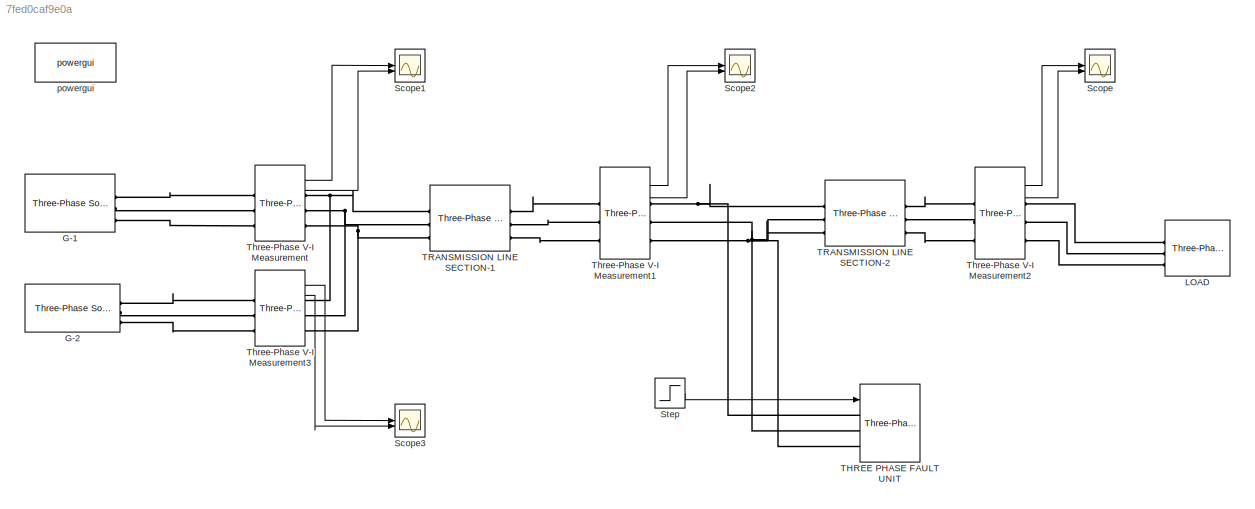
MODEL slx_7fed0caf9e0a
KIND model
CONFIG AbsTol = auto
CONFIG EnableMultiTasking = off
CONFIG FixedStep = auto
CONFIG MaxStep = auto
CONFIG MinStep = auto
CONFIG RelTol = 1e-3
CONFIG SampleTimeConstraint = Unconstrained
CONFIG SolverName = VariableStepAuto
CONFIG StartTime = 0.0
CONFIG StopTime = 0.08
BLOCK [Reference] G-1  REF=spsThreePhaseSourceLib/Three-Phase Source
  LibrarySourceBlock = sps_lib/Sources/Three-Phase Source
  SourceBlock = spsThreePhaseSourceLib/Three-Phase Source
  SourceType = Three-Phase Source
BLOCK [Reference] G-2  REF=spsThreePhaseSourceLib/Three-Phase Source
  LibrarySourceBlock = sps_lib/Sources/Three-Phase Source
  SourceBlock = spsThreePhaseSourceLib/Three-Phase Source
  SourceType = Three-Phase Source
BLOCK [Reference] LOAD  REF=spsThreePhaseParallelRLCLoadLib/Three-Phase
Parallel RLC Load
  AttributesFormatString = \n
  LibrarySourceBlock = sps_lib/Passives/Three-Phase\nParallel RLC Load
  NameLocation = right
  SourceBlock = spsThreePhaseParallelRLCLoadLib/Three-Phase\nParallel RLC Load
  SourceType = Three-Phase Parallel RLC Load
BLOCK [Scope] Scope
  Floating = off
  NumInputPorts = 2
  ScopeSpecificationString = Simulink.scopes.TimeScopeBlockCfg('CurrentConfiguration', extmgr.ConfigurationSet(extmgr.Configuration('Core','General UI',true),extmgr.Configuration('Core','Source UI',true),extmgr.Configuration('Sources','WiredSimulink',true),extmgr.Configuration('Visuals','Time Domain',true,'SerializedDisplays',{struct('MinYLimReal','-31869.31605','MaxYLimReal','31085.0816','YLabelReal','','MinYLimMag','   0.00...<+2485ch>
BLOCK [Scope] Scope1
  Floating = off
  NumInputPorts = 2
  ScopeSpecificationString = Simulink.scopes.TimeScopeBlockCfg('CurrentConfiguration', extmgr.ConfigurationSet(extmgr.Configuration('Core','General UI',true),extmgr.Configuration('Core','Source UI',true),extmgr.Configuration('Sources','WiredSimulink',true,'DataLoggingVariableName','ScopeData1'),extmgr.Configuration('Visuals','Time Domain',true,'SerializedDisplays',{struct('MinYLimReal','-24761.40195','MaxYLimReal','24761.4177...<+2544ch>
BLOCK [Scope] Scope2
  Floating = off
  NumInputPorts = 2
  ScopeSpecificationString = Simulink.scopes.TimeScopeBlockCfg('CurrentConfiguration', extmgr.ConfigurationSet(extmgr.Configuration('Core','General UI',true),extmgr.Configuration('Core','Source UI',true),extmgr.Configuration('Sources','WiredSimulink',true,'DataLoggingVariableName','ScopeData2'),extmgr.Configuration('Visuals','Time Domain',true,'SerializedDisplays',{struct('MinYLimReal','-33297.92364','MaxYLimReal','32421.1999...<+2309ch>
BLOCK [Scope] Scope3
  Floating = off
  NumInputPorts = 2
  ScopeSpecificationString = Simulink.scopes.TimeScopeBlockCfg('CurrentConfiguration', extmgr.ConfigurationSet(extmgr.Configuration('Core','General UI',true),extmgr.Configuration('Core','Source UI',true),extmgr.Configuration('Sources','WiredSimulink',true,'DataLoggingVariableName','ScopeData3'),extmgr.Configuration('Visuals','Time Domain',true,'SerializedDisplays',{struct('MinYLimReal','-24761.40195','MaxYLimReal','24761.4177...<+2550ch>
BLOCK [Step] Step
  SampleTime = 0
  Time = 0.04
BLOCK [Reference] THREE PHASE FAULT UNIT  REF=spsThreePhaseFaultLib/Three-Phase Fault
  LibrarySourceBlock = sps_lib/Power Grid Elements/Three-Phase Fault
  SourceBlock = spsThreePhaseFaultLib/Three-Phase Fault
  SourceType = Three-Phase Fault
BLOCK [Reference] TRANSMISSION LINE SECTION-1  REF=spsThreePhasePISectionLineLib/Three-Phase
PI Section Line
  AttributesFormatString = \n
  LibrarySourceBlock = sps_lib/Power Grid Elements/Three-Phase\nPI Section Line
  SourceBlock = spsThreePhasePISectionLineLib/Three-Phase\nPI Section Line
  SourceType = Three-Phase PI Section Line
BLOCK [Reference] TRANSMISSION LINE SECTION-2  REF=spsThreePhasePISectionLineLib/Three-Phase
PI Section Line
  AttributesFormatString = \n
  LibrarySourceBlock = sps_lib/Power Grid Elements/Three-Phase\nPI Section Line
  SourceBlock = spsThreePhasePISectionLineLib/Three-Phase\nPI Section Line
  SourceType = Three-Phase PI Section Line
BLOCK [Reference] Three-Phase V-I Measurement  REF=spsThreePhaseVIMeasurementLib/Three-Phase
V-I Measurement
  LibrarySourceBlock = sps_lib/Sensors and Measurements/Three-Phase\nV-I Measurement
  SourceBlock = spsThreePhaseVIMeasurementLib/Three-Phase\nV-I Measurement
  SourceType = Three-Phase VI Measurement
BLOCK [Reference] Three-Phase V-I Measurement1  REF=spsThreePhaseVIMeasurementLib/Three-Phase
V-I Measurement
  LibrarySourceBlock = sps_lib/Sensors and Measurements/Three-Phase\nV-I Measurement
  SourceBlock = spsThreePhaseVIMeasurementLib/Three-Phase\nV-I Measurement
  SourceType = Three-Phase VI Measurement
BLOCK [Reference] Three-Phase V-I Measurement2  REF=spsThreePhaseVIMeasurementLib/Three-Phase
V-I Measurement
  LibrarySourceBlock = sps_lib/Sensors and Measurements/Three-Phase\nV-I Measurement
  SourceBlock = spsThreePhaseVIMeasurementLib/Three-Phase\nV-I Measurement
  SourceType = Three-Phase VI Measurement
BLOCK [Reference] Three-Phase V-I Measurement3  REF=spsThreePhaseVIMeasurementLib/Three-Phase
V-I Measurement
  LibrarySourceBlock = sps_lib/Sensors and Measurements/Three-Phase\nV-I Measurement
  SourceBlock = spsThreePhaseVIMeasurementLib/Three-Phase\nV-I Measurement
  SourceType = Three-Phase VI Measurement
BLOCK [Reference] powergui  REF=sps_lib/powergui
  LibrarySourceBlock = sps_lib/powergui
  Priority = 1
  SourceBlock = sps_lib/powergui
  SourceType = PSB option menu block
LINE Step:1 -> THREE PHASE FAULT UNIT:1
LINE Three-Phase V-I Measurement1:1 -> Scope2:1
LINE Three-Phase V-I Measurement1:2 -> Scope2:2
LINE Three-Phase V-I Measurement2:1 -> Scope:1
LINE Three-Phase V-I Measurement2:2 -> Scope:2
LINE Three-Phase V-I Measurement3:1 -> Scope3:1
LINE Three-Phase V-I Measurement3:2 -> Scope3:2
LINE Three-Phase V-I Measurement:1 -> Scope1:1
LINE Three-Phase V-I Measurement:2 -> Scope1:2
PLINE G-1:RConn1 -- Three-Phase V-I Measurement:LConn1
PLINE G-1:RConn2 -- Three-Phase V-I Measurement:LConn2
PLINE G-1:RConn3 -- Three-Phase V-I Measurement:LConn3
PLINE G-2:RConn1 -- Three-Phase V-I Measurement3:LConn1
PLINE G-2:RConn2 -- Three-Phase V-I Measurement3:LConn2
PLINE G-2:RConn3 -- Three-Phase V-I Measurement3:LConn3
PLINE LOAD:LConn1 -- Three-Phase V-I Measurement2:RConn1
PLINE LOAD:LConn2 -- Three-Phase V-I Measurement2:RConn2
PLINE LOAD:LConn3 -- Three-Phase V-I Measurement2:RConn3
PNET net1: THREE PHASE FAULT UNIT:LConn1 -- TRANSMISSION LINE SECTION-2:LConn1 -- Three-Phase V-I Measurement1:RConn1
PNET net2: THREE PHASE FAULT UNIT:LConn2 -- TRANSMISSION LINE SECTION-2:LConn2 -- Three-Phase V-I Measurement1:RConn2
PNET net3: THREE PHASE FAULT UNIT:LConn3 -- TRANSMISSION LINE SECTION-2:LConn3 -- Three-Phase V-I Measurement1:RConn3
PNET net4: TRANSMISSION LINE SECTION-1:LConn1 -- Three-Phase V-I Measurement3:RConn1 -- Three-Phase V-I Measurement:RConn1
PNET net5: TRANSMISSION LINE SECTION-1:LConn2 -- Three-Phase V-I Measurement3:RConn2 -- Three-Phase V-I Measurement:RConn2
PNET net6: TRANSMISSION LINE SECTION-1:LConn3 -- Three-Phase V-I Measurement3:RConn3 -- Three-Phase V-I Measurement:RConn3
PLINE TRANSMISSION LINE SECTION-1:RConn1 -- Three-Phase V-I Measurement1:LConn1
PLINE TRANSMISSION LINE SECTION-1:RConn2 -- Three-Phase V-I Measurement1:LConn2
PLINE TRANSMISSION LINE SECTION-1:RConn3 -- Three-Phase V-I Measurement1:LConn3
PLINE TRANSMISSION LINE SECTION-2:RConn1 -- Three-Phase V-I Measurement2:LConn1
PLINE TRANSMISSION LINE SECTION-2:RConn2 -- Three-Phase V-I Measurement2:LConn2
PLINE TRANSMISSION LINE SECTION-2:RConn3 -- Three-Phase V-I Measurement2:LConn3
note: PNET lines group multi-terminal physical nets as a canonical sorted terminal list (undirected conserving connections); 2-terminal nets keep the pairwise PLINE form
